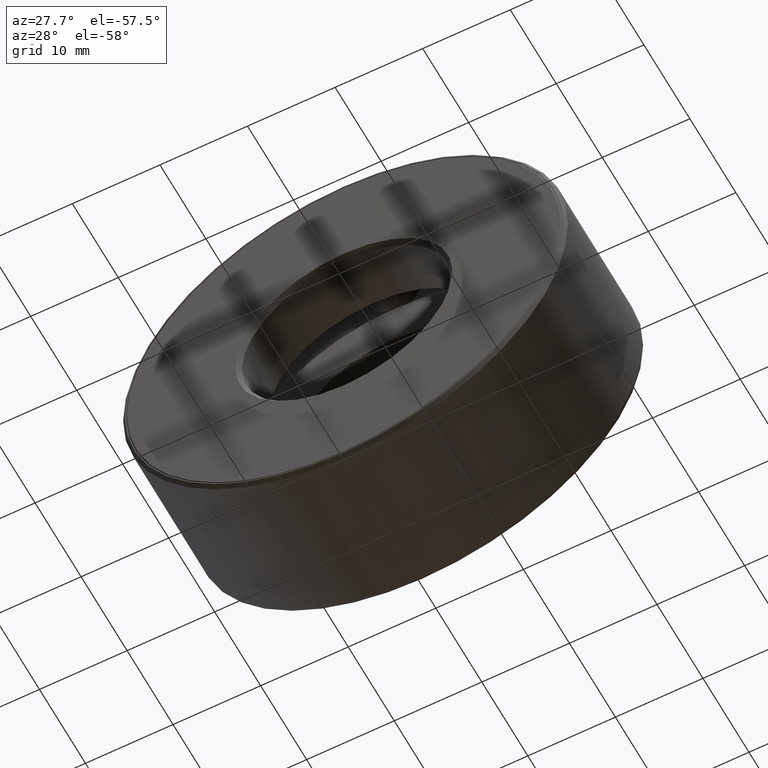
[diagram: clean part render]
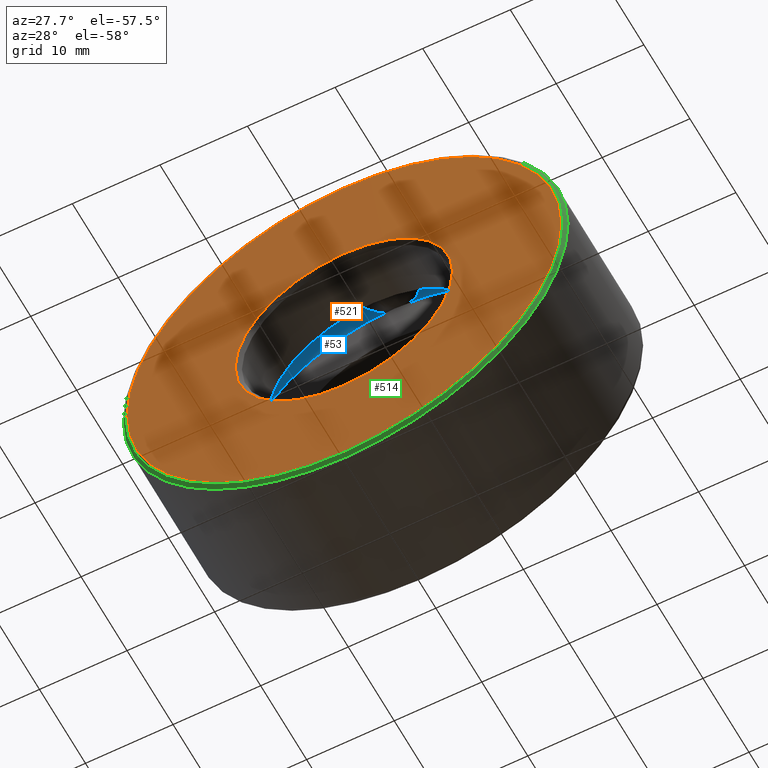
[diagram: same view with three faces highlighted in distinct colors, each labeled with its STEP entity id]
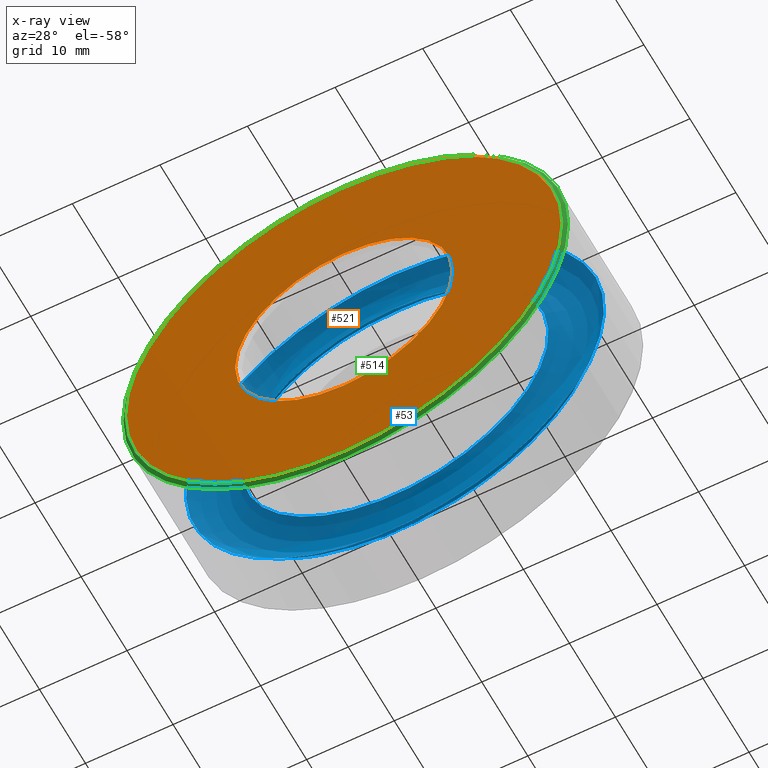
[diagram: x-ray of the same camera — body ghosted, the three highlighted faces saturated]
A machine part, auxiliary view with three faces highlighted in distinct colors.
The next image is the same camera in x-ray (body ghosted, the three faces saturated) — at least one of them is partly hidden behind the body in this view.
Their STEP definitions:

[orange] entity #521 — the highlighted planar face has unit normal (-0, 1, 0).
#12 = AXIS2_PLACEMENT_3D ( 'NONE', #565, #425, #153 ) ;
#59 = DIRECTION ( 'NONE',  ( 0.0000000000000000000, 0.0000000000000000000, 1.000000000000000000 ) ) ;
#67 = ORIENTED_EDGE ( 'NONE', *, *, #542, .F. ) ;
#101 = DIRECTION ( 'NONE',  ( -0.0000000000000000000, 1.000000000000000000, 0.0000000000000000000 ) ) ;
#115 = CARTESIAN_POINT ( 'NONE',  ( 0.0000000000000000000, -6.296055922898104700E-017, 0.9749999999999999800 ) ) ;
#118 = CARTESIAN_POINT ( 'NONE',  ( 0.0000000000000000000, 0.0000000000000000000, 0.0000000000000000000 ) ) ;
#148 = CARTESIAN_POINT ( 'NONE',  ( -8.194164824205915600E-033, -3.148027961449053600E-017, 0.0000000000000000000 ) ) ;
#153 = DIRECTION ( 'NONE',  ( 0.0000000000000000000, 0.0000000000000000000, 1.000000000000000000 ) ) ;
#165 = CARTESIAN_POINT ( 'NONE',  ( 0.0000000000000000000, 0.0000000000000000000, 0.4887500000000000700 ) ) ;
#187 = EDGE_LOOP ( 'NONE', ( #67 ) ) ;
#203 = CIRCLE ( 'NONE', #539, 0.4887500000000000700 ) ;
#210 = EDGE_LOOP ( 'NONE', ( #480 ) ) ;
#221 = CIRCLE ( 'NONE', #12, 0.9749999999999999800 ) ;
#282 = AXIS2_PLACEMENT_3D ( 'NONE', #148, #101, #59 ) ;
#285 = EDGE_CURVE ( 'NONE', #375, #375, #203, .T. ) ;
#306 = DIRECTION ( 'NONE',  ( 0.0000000000000000000, 0.0000000000000000000, 1.000000000000000000 ) ) ;
#337 = PLANE ( 'NONE',  #282 ) ;
#375 = VERTEX_POINT ( 'NONE', #165 ) ;
#417 = VERTEX_POINT ( 'NONE', #115 ) ;
#425 = DIRECTION ( 'NONE',  ( -0.0000000000000000000, 1.000000000000000000, -0.0000000000000000000 ) ) ;
#444 = FACE_BOUND ( 'NONE', #210, .T. ) ;
#480 = ORIENTED_EDGE ( 'NONE', *, *, #285, .T. ) ;
#493 = DIRECTION ( 'NONE',  ( -0.0000000000000000000, 1.000000000000000000, -0.0000000000000000000 ) ) ;
#521 = ADVANCED_FACE ( 'NONE', ( #547, #444 ), #337, .F. ) ;
#539 = AXIS2_PLACEMENT_3D ( 'NONE', #118, #493, #306 ) ;
#542 = EDGE_CURVE ( 'NONE', #417, #417, #221, .T. ) ;
#547 = FACE_OUTER_BOUND ( 'NONE', #187, .T. ) ;
#565 = CARTESIAN_POINT ( 'NONE',  ( 0.0000000000000000000, -6.296055922898104700E-017, 0.0000000000000000000 ) ) ;

[blue] entity #53 — the highlighted toroidal blend (fillet) surface has major radius 20.6946 mm and minor (blend) radius 3.9688 mm.
#8 = CIRCLE ( 'NONE', #86, 0.6897499999999997500 ) ;
#17 = CARTESIAN_POINT ( 'NONE',  ( 0.0000000000000000000, 0.4375000000000000000, 0.9397499999999998600 ) ) ;
#20 = CARTESIAN_POINT ( 'NONE',  ( 0.0000000000000000000, 0.4375000000000000000, 0.6897499999999997500 ) ) ;
#53 = ADVANCED_FACE ( 'NONE', ( #513, #536 ), #380, .F. ) ;
#83 = DIRECTION ( 'NONE',  ( 0.0000000000000000000, 0.0000000000000000000, 1.000000000000000000 ) ) ;
#86 = AXIS2_PLACEMENT_3D ( 'NONE', #550, #549, #83 ) ;
#92 = CIRCLE ( 'NONE', #214, 0.9397499999999998600 ) ;
#106 = VERTEX_POINT ( 'NONE', #17 ) ;
#166 = VERTEX_POINT ( 'NONE', #20 ) ;
#204 = CARTESIAN_POINT ( 'NONE',  ( 0.0000000000000000000, 0.4375000000000000000, 0.0000000000000000000 ) ) ;
#214 = AXIS2_PLACEMENT_3D ( 'NONE', #204, #518, #286 ) ;
#247 = EDGE_LOOP ( 'NONE', ( #416 ) ) ;
#286 = DIRECTION ( 'NONE',  ( 0.0000000000000000000, 0.0000000000000000000, 1.000000000000000000 ) ) ;
#294 = EDGE_CURVE ( 'NONE', #166, #166, #8, .T. ) ;
#314 = CARTESIAN_POINT ( 'NONE',  ( 0.0000000000000000000, 0.3437499999999998300, 0.0000000000000000000 ) ) ;
#325 = ORIENTED_EDGE ( 'NONE', *, *, #294, .T. ) ;
#371 = DIRECTION ( 'NONE',  ( 0.0000000000000000000, 0.0000000000000000000, 1.000000000000000000 ) ) ;
#380 = TOROIDAL_SURFACE ( 'NONE', #602, 0.8147499999999998600, 0.1562500000000001100 ) ;
#416 = ORIENTED_EDGE ( 'NONE', *, *, #453, .F. ) ;
#453 = EDGE_CURVE ( 'NONE', #106, #106, #92, .T. ) ;
#460 = DIRECTION ( 'NONE',  ( -0.0000000000000000000, 1.000000000000000000, -0.0000000000000000000 ) ) ;
#513 = FACE_OUTER_BOUND ( 'NONE', #525, .T. ) ;
#518 = DIRECTION ( 'NONE',  ( -0.0000000000000000000, 1.000000000000000000, -0.0000000000000000000 ) ) ;
#525 = EDGE_LOOP ( 'NONE', ( #325 ) ) ;
#536 = FACE_OUTER_BOUND ( 'NONE', #247, .T. ) ;
#549 = DIRECTION ( 'NONE',  ( -0.0000000000000000000, 1.000000000000000000, -0.0000000000000000000 ) ) ;
#550 = CARTESIAN_POINT ( 'NONE',  ( 0.0000000000000000000, 0.4375000000000000000, 0.0000000000000000000 ) ) ;
#602 = AXIS2_PLACEMENT_3D ( 'NONE', #314, #460, #371 ) ;

[green] entity #514 — the highlighted conical surface has half-angle 45 deg.
#5 = CARTESIAN_POINT ( 'NONE',  ( 0.0000000000000000000, -6.616194359655631800E-017, 0.0000000000000000000 ) ) ;
#34 = AXIS2_PLACEMENT_3D ( 'NONE', #471, #54, #100 ) ;
#35 = DIRECTION ( 'NONE',  ( 0.0000000000000000000, 0.0000000000000000000, 1.000000000000000000 ) ) ;
#54 = DIRECTION ( 'NONE',  ( -0.0000000000000000000, 1.000000000000000000, -0.0000000000000000000 ) ) ;
#68 = FACE_OUTER_BOUND ( 'NONE', #310, .T. ) ;
#78 = CARTESIAN_POINT ( 'NONE',  ( 0.0000000000000000000, 0.01499999999999997700, 0.0000000000000000000 ) ) ;
#89 = ORIENTED_EDGE ( 'NONE', *, *, #347, .F. ) ;
#100 = DIRECTION ( 'NONE',  ( 0.0000000000000000000, 0.0000000000000000000, 1.000000000000000000 ) ) ;
#103 = DIRECTION ( 'NONE',  ( -0.0000000000000000000, 1.000000000000000000, -0.0000000000000000000 ) ) ;
#150 = EDGE_LOOP ( 'NONE', ( #228 ) ) ;
#228 = ORIENTED_EDGE ( 'NONE', *, *, #546, .T. ) ;
#290 = AXIS2_PLACEMENT_3D ( 'NONE', #78, #541, #35 ) ;
#292 = CONICAL_SURFACE ( 'NONE', #34, 0.9849999999999999900, 0.7853981633974415100 ) ;
#297 = CARTESIAN_POINT ( 'NONE',  ( 0.0000000000000000000, -6.616194359655631800E-017, 0.9849999999999999900 ) ) ;
#310 = EDGE_LOOP ( 'NONE', ( #89 ) ) ;
#328 = DIRECTION ( 'NONE',  ( 0.0000000000000000000, 0.0000000000000000000, 1.000000000000000000 ) ) ;
#347 = EDGE_CURVE ( 'NONE', #537, #537, #559, .T. ) ;
#354 = AXIS2_PLACEMENT_3D ( 'NONE', #5, #103, #328 ) ;
#431 = CARTESIAN_POINT ( 'NONE',  ( 0.0000000000000000000, 0.01499999999999997700, 0.9999999999999998900 ) ) ;
#451 = CIRCLE ( 'NONE', #354, 0.9849999999999999900 ) ;
#462 = VERTEX_POINT ( 'NONE', #297 ) ;
#469 = FACE_BOUND ( 'NONE', #150, .T. ) ;
#471 = CARTESIAN_POINT ( 'NONE',  ( 0.0000000000000000000, -6.616194359655631800E-017, 0.0000000000000000000 ) ) ;
#514 = ADVANCED_FACE ( 'NONE', ( #68, #469 ), #292, .T. ) ;
#537 = VERTEX_POINT ( 'NONE', #431 ) ;
#541 = DIRECTION ( 'NONE',  ( -0.0000000000000000000, 1.000000000000000000, -0.0000000000000000000 ) ) ;
#546 = EDGE_CURVE ( 'NONE', #462, #462, #451, .T. ) ;
#559 = CIRCLE ( 'NONE', #290, 0.9999999999999998900 ) ;